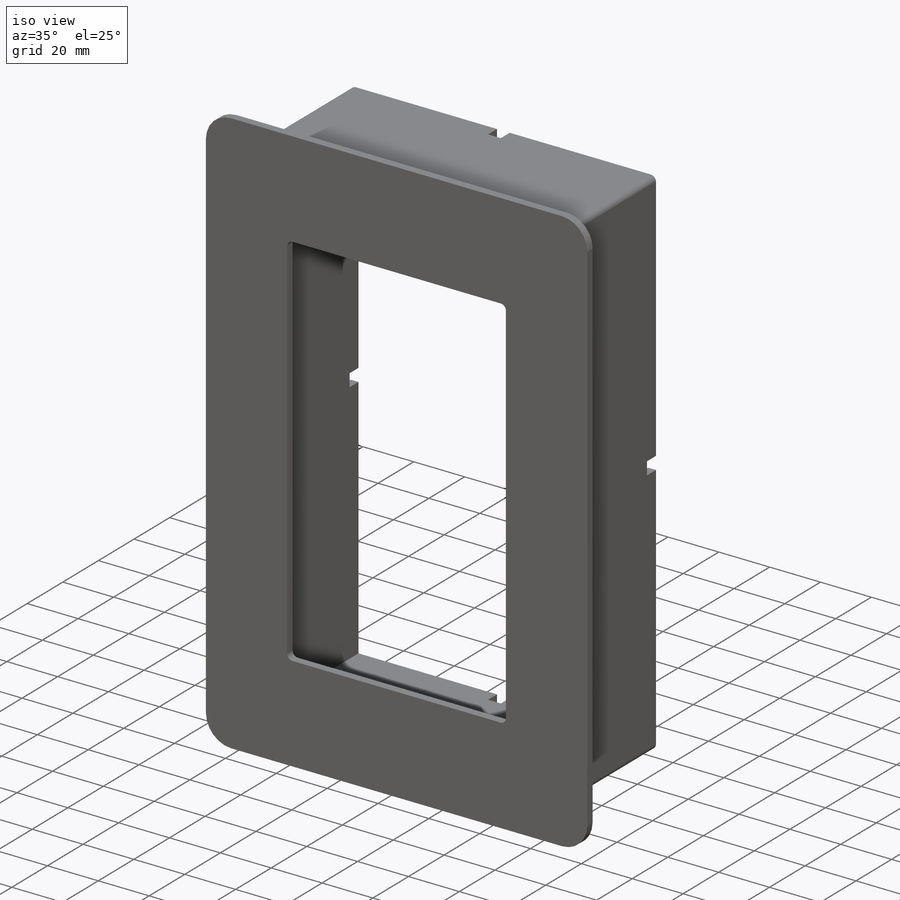
[diagram: iso view]
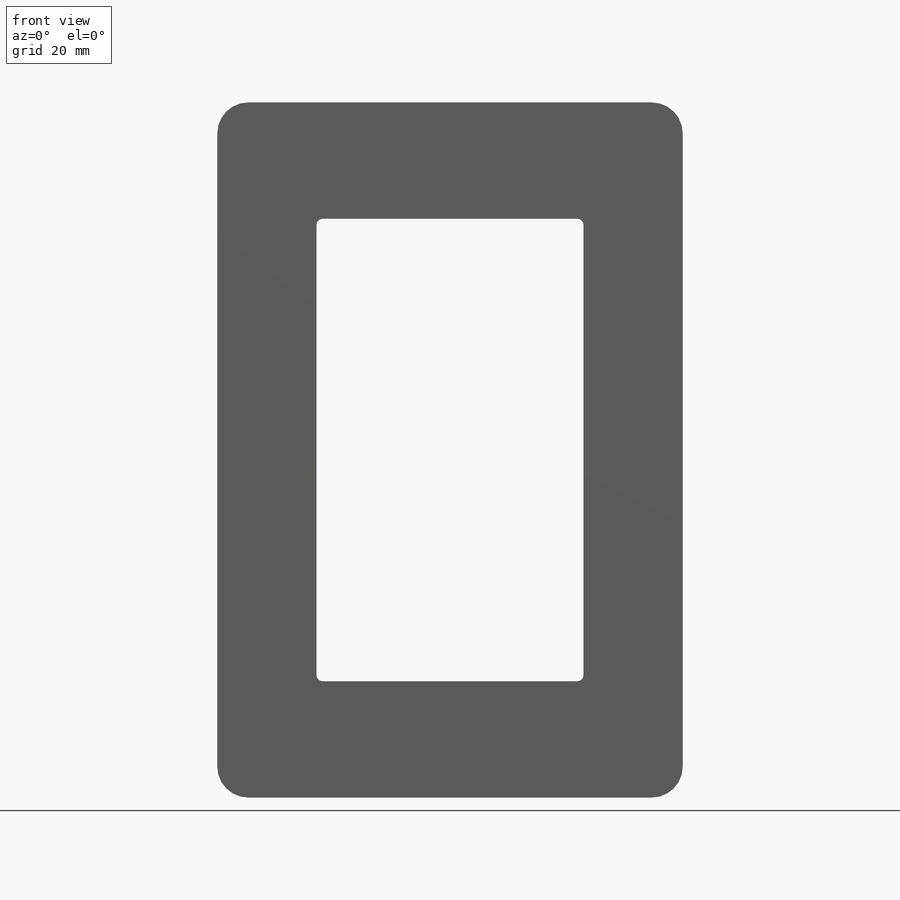
[diagram: front view]
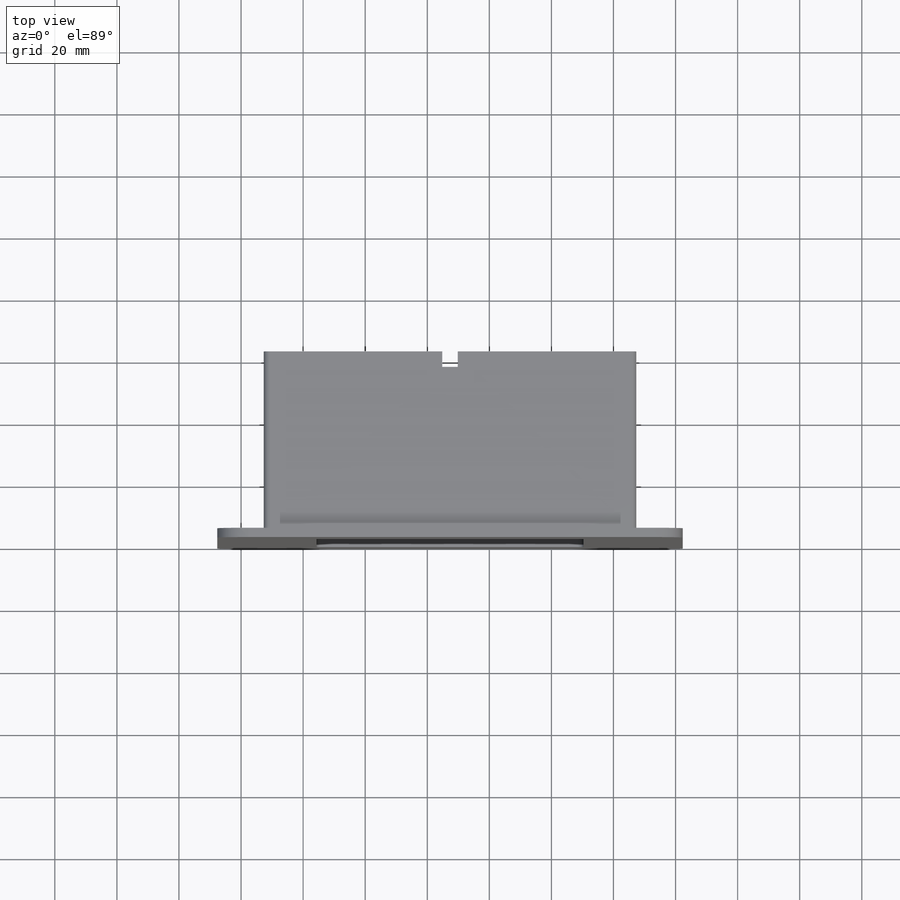
[diagram: top view]
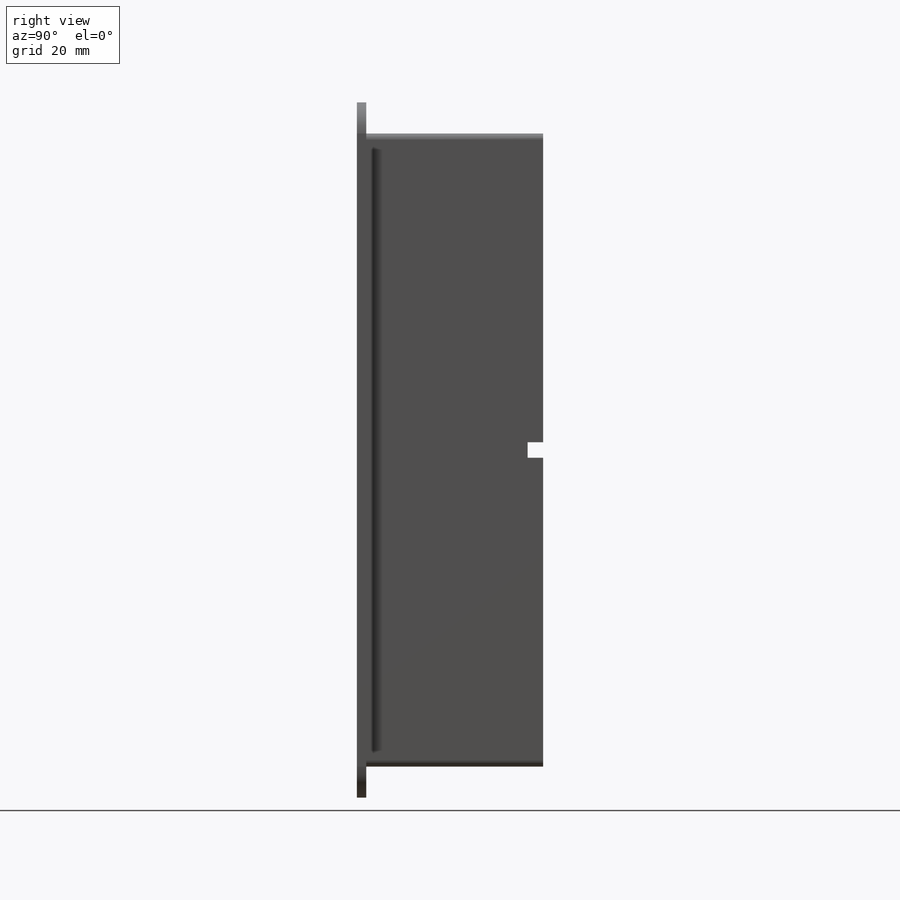
[diagram: right view]
SOLIDWORKS PART (.sldprt)
format: sldprt  version: not decoded by parser v0  size: 313,856 bytes
history: native  units: mm
features: sketch x8, fillet x7, extrude x5, plane x3, cut_extrude x3, material x1 (+9 scaffold rows collapsed)
feature tree (36):
  scaffold x9  (default folders/planes/origin — collapsed)
  material  "Material <não especificado>"
  plane  "Plano frontal"
  plane  "Plano superior"
  plane  "Plano direito"
  sketch  "Esboço1"  dims[c1.D1=194.0mm c1.D2=110.0mm c1.D3=5.0mm c1.D4=5.0mm c1.D5=5.0mm c1.D6=5.0mm c2.D1=120.0mm c2.D2=204.0mm]
  extrude  "Ressalto-extrusão1"  Depth=60mm
  sketch  "Esboço2"  dims[D1=3.0mm D2=3.0mm D3=3.0mm D4=3.0mm]
  cut_extrude  "Corte-extrusão1"  Depth=57mm
  sketch  "Esboço4"  dims[c1.D1=29.0mm c1.D2=27.5mm c1.D3=34.0mm c1.D4=17.0mm c1.D5=146.0mm c2.D1=86.0mm c2.D3=149.0mm c2.D5=204.0mm]
  cut_extrude  "Corte-extrusão2"  Depth=45mm
  sketch  "Esboço7"  dims[D1=3.0mm]
  extrude  "Ressalto-extrusão2"  Depth=15mm
  sketch  "Esboço12"  dims[D1=3.0mm]
  extrude  "Ressalto-extrusão3"  Depth=15mm
  sketch  "Esboço13"
  extrude  "Ressalto-extrusão4"  Depth=10mm
  sketch  "Esboço14"
  extrude  "Ressalto-extrusão5"  Depth=10mm
  fillet  "Filete1"  Radius=10mm
  sketch  "Esboço15"  dims[D1=5.0mm D2=5.0mm D3=5.0mm D4=5.0mm D5=57.5mm D6=99.5mm D7=99.5mm D8=57.5mm]
  cut_extrude  "Corte-extrusão4"  Depth=5mm
  fillet  "Filete2"  Radius=10mm
  fillet  "Filete3"  Radius=10mm
  fillet  "Filete4"  Radius=10mm
  fillet  "Filete5"  Radius=2mm
  fillet  "Filete6"  Radius=2mm
  fillet  "Filete8"  Radius=2mm
decode coverage: 21 of 23 modeling features carry decoded parameters
note: suppression state not decoded; provenance and decode notes live in map.json
